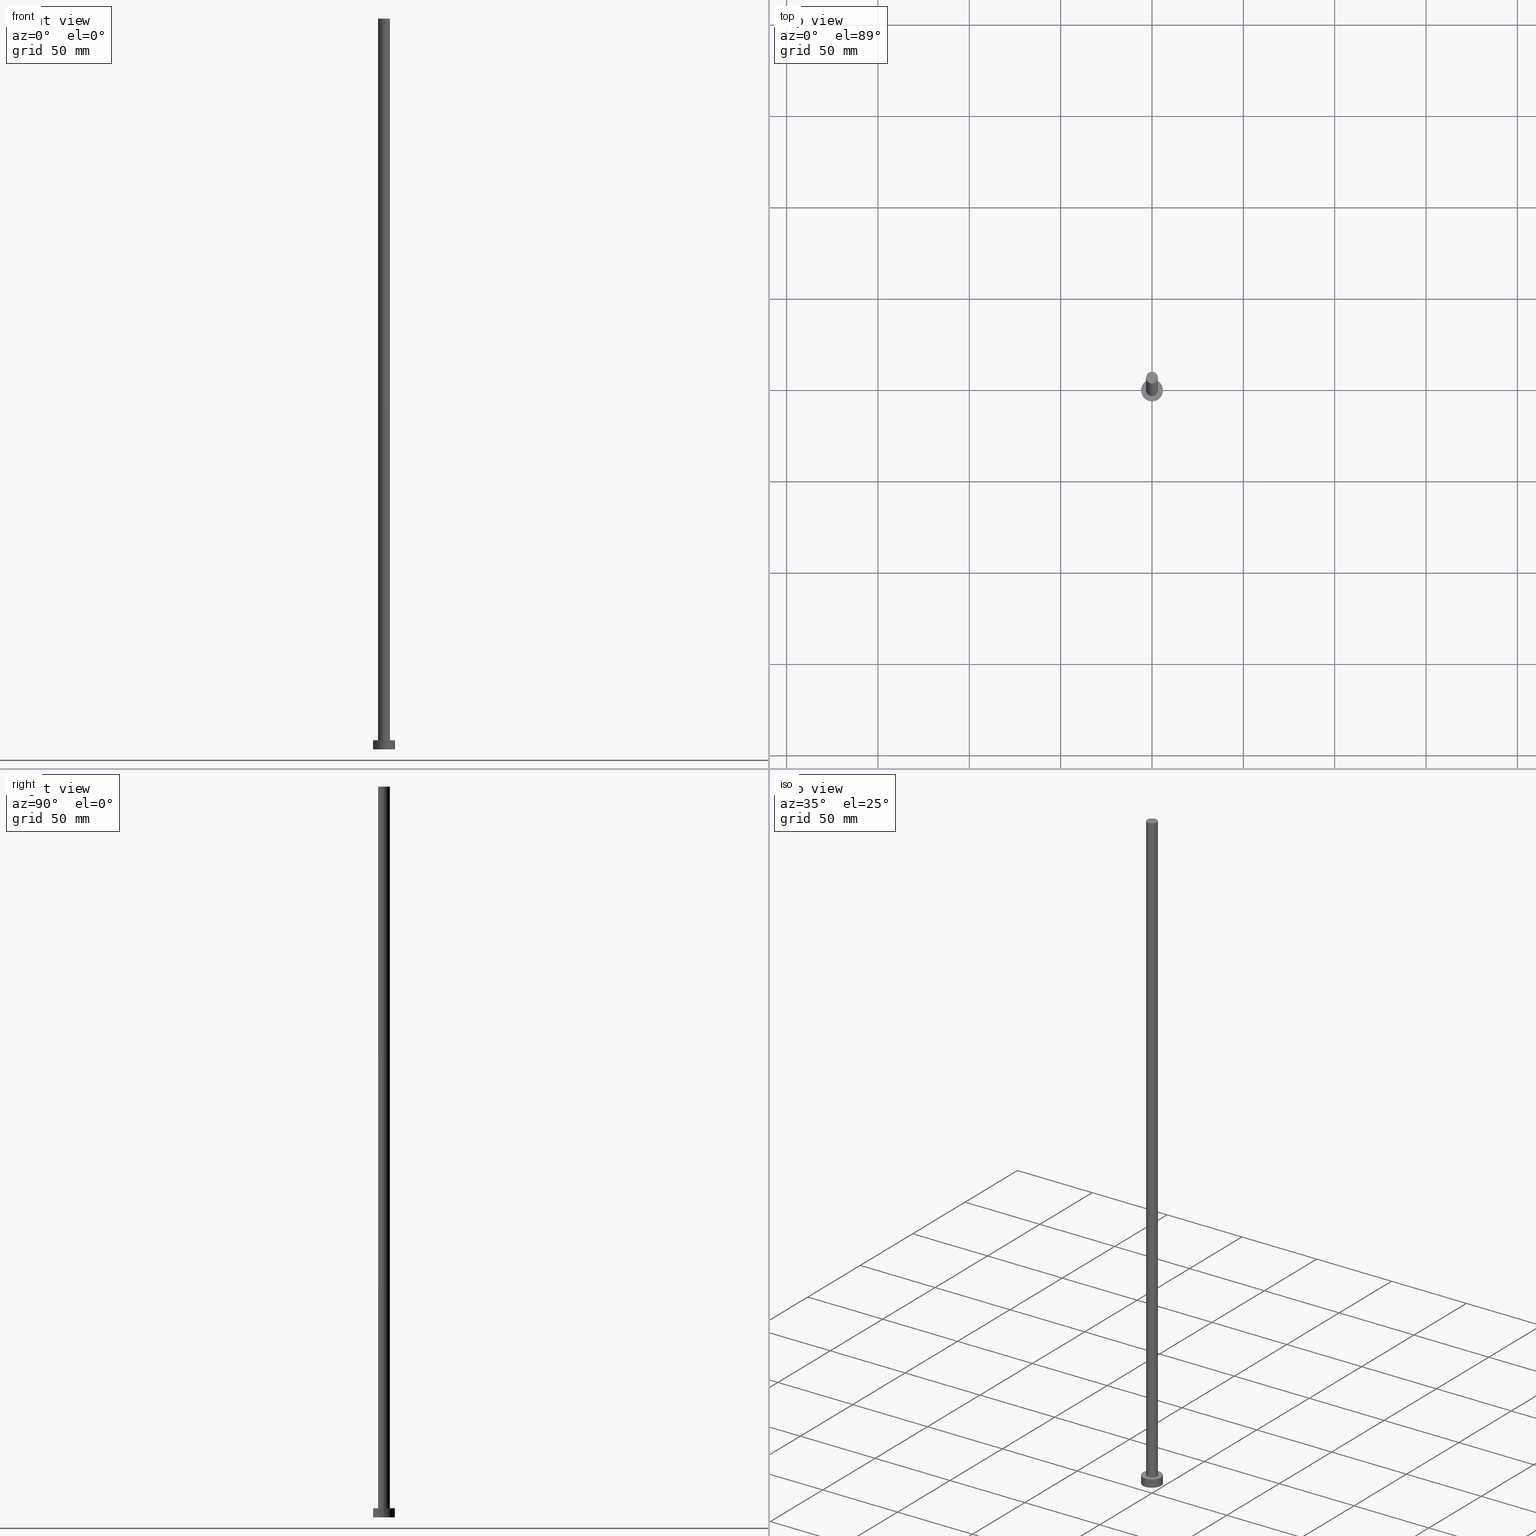
[diagram: canonical four-view strip — front | top / right | iso, engineering-drawing reading convention]
A machine part, canonical four-view strip (front | top / right | iso — engineering-drawing reading convention). The complete STEP part file that produces these views, byte-faithful:
ISO-10303-21;
HEADER;
FILE_DESCRIPTION (( 'STEP AP203' ),
    '1' );
FILE_NAME ('58e5.STEP',
    '2023-02-13T11:47:48',
    ( '' ),
    ( '' ),
    'SwSTEP 2.0',
    'SolidWorks 2019',
    '' );
FILE_SCHEMA (( 'CONFIG_CONTROL_DESIGN' ));
ENDSEC;

DATA;
#1 = EDGE_CURVE ( 'NONE', #188, #25, #248, .T. ) ;
#2 = DIRECTION ( 'NONE',  ( 0.000000000000000000, 0.000000000000000000, 1.000000000000000000 ) ) ;
#3 = APPLICATION_PROTOCOL_DEFINITION ( 'international standard', 'config_control_design', 1994, #229 ) ;
#4 = DIRECTION ( 'NONE',  ( 1.000000000000000000, 0.000000000000000000, 0.000000000000000000 ) ) ;
#5 = CIRCLE ( 'NONE', #122, 3.250000000000000444 ) ;
#6 = CARTESIAN_POINT ( 'NONE',  ( 0.000000000000000000, 0.000000000000000000, 0.000000000000000000 ) ) ;
#7 = APPROVAL_PERSON_ORGANIZATION ( #124, #232, #91 ) ;
#8 = VERTEX_POINT ( 'NONE', #75 ) ;
#9 = DATE_AND_TIME ( #242, #107 ) ;
#10 = ORIENTED_EDGE ( 'NONE', *, *, #252, .F. ) ;
#11 = CALENDAR_DATE ( 2023, 13, 2 ) ;
#12 = ORIENTED_EDGE ( 'NONE', *, *, #1, .F. ) ;
#13 = ORIENTED_EDGE ( 'NONE', *, *, #141, .F. ) ;
#14 = DIRECTION ( 'NONE',  ( 0.000000000000000000, 0.000000000000000000, 1.000000000000000000 ) ) ;
#15 = ADVANCED_FACE ( 'NONE', ( #151 ), #32, .T. ) ;
#16 = EDGE_CURVE ( 'NONE', #169, #188, #137, .T. ) ;
#17 = SHAPE_DEFINITION_REPRESENTATION ( #150, #80 ) ;
#18 =( LENGTH_UNIT ( ) NAMED_UNIT ( * ) SI_UNIT ( .MILLI., .METRE. ) );
#19 = FACE_OUTER_BOUND ( 'NONE', #90, .T. ) ;
#20 = CIRCLE ( 'NONE', #52, 6.000000000000000888 ) ;
#21 = CC_DESIGN_PERSON_AND_ORGANIZATION_ASSIGNMENT ( #164, #219, ( #246 ) ) ;
#22 = DIRECTION ( 'NONE',  ( -1.000000000000000000, 0.000000000000000000, 0.000000000000000000 ) ) ;
#23 = AXIS2_PLACEMENT_3D ( 'NONE', #227, #215, #251 ) ;
#24 = APPLICATION_CONTEXT ( 'configuration controlled 3d designs of mechanical parts and assemblies' ) ;
#25 = VERTEX_POINT ( 'NONE', #68 ) ;
#26 = APPROVAL_STATUS ( 'not_yet_approved' ) ;
#27 = ORIENTED_EDGE ( 'NONE', *, *, #16, .F. ) ;
#28 = VECTOR ( 'NONE', #95, 1000.000000000000000 ) ;
#29 = PERSON_AND_ORGANIZATION_ROLE ( 'classification_officer' ) ;
#30 = EDGE_LOOP ( 'NONE', ( #10, #166, #187, #92 ) ) ;
#31 = PERSON_AND_ORGANIZATION ( #186, #119 ) ;
#32 = PLANE ( 'NONE',  #231 ) ;
#33 = CYLINDRICAL_SURFACE ( 'NONE', #45, 3.250000000000000444 ) ;
#34 = DIRECTION ( 'NONE',  ( -0.000000000000000000, -0.000000000000000000, -1.000000000000000000 ) ) ;
#35 = CC_DESIGN_DATE_AND_TIME_ASSIGNMENT ( #9, #66, ( #88 ) ) ;
#36 = EDGE_CURVE ( 'NONE', #25, #203, #158, .T. ) ;
#37 = DIRECTION ( 'NONE',  ( 0.000000000000000000, 0.000000000000000000, 1.000000000000000000 ) ) ;
#38 = APPROVAL_STATUS ( 'not_yet_approved' ) ;
#39 = DIRECTION ( 'NONE',  ( 0.000000000000000000, 0.000000000000000000, 1.000000000000000000 ) ) ;
#40 = DIRECTION ( 'NONE',  ( -1.000000000000000000, 0.000000000000000000, 0.000000000000000000 ) ) ;
#41 = CYLINDRICAL_SURFACE ( 'NONE', #67, 6.000000000000000888 ) ;
#42 = CIRCLE ( 'NONE', #178, 3.250000000000000444 ) ;
#43 = APPROVAL ( #217, 'NEUR�EN�' ) ;
#44 = VECTOR ( 'NONE', #72, 1000.000000000000000 ) ;
#45 = AXIS2_PLACEMENT_3D ( 'NONE', #218, #113, #240 ) ;
#46 = DATE_AND_TIME ( #48, #125 ) ;
#47 = ORIENTED_EDGE ( 'NONE', *, *, #16, .T. ) ;
#48 = CALENDAR_DATE ( 2023, 13, 2 ) ;
#49 = VERTEX_POINT ( 'NONE', #143 ) ;
#50 = APPROVAL_ROLE ( '' ) ;
#51 = VERTEX_POINT ( 'NONE', #224 ) ;
#52 = AXIS2_PLACEMENT_3D ( 'NONE', #236, #37, #62 ) ;
#53 = DESIGN_CONTEXT ( 'detailed design', #24, 'design' ) ;
#54 = ORIENTED_EDGE ( 'NONE', *, *, #252, .T. ) ;
#55 = VERTEX_POINT ( 'NONE', #128 ) ;
#56 = ADVANCED_FACE ( 'NONE', ( #163 ), #33, .T. ) ;
#57 = LOCAL_TIME ( 12, 47, 48.00000000000000000, #98 ) ;
#58 = LINE ( 'NONE', #60, #221 ) ;
#59 = MANIFOLD_SOLID_BREP ( 'P�idat vysunut�m3', #144 ) ;
#60 = CARTESIAN_POINT ( 'NONE',  ( -6.000000000000000888, 0.000000000000000000, 5.000000000000000000 ) ) ;
#61 = CARTESIAN_POINT ( 'NONE',  ( 0.000000000000000000, 0.000000000000000000, 400.0000000000000000 ) ) ;
#62 = DIRECTION ( 'NONE',  ( 1.000000000000000000, 0.000000000000000000, 0.000000000000000000 ) ) ;
#63 = ADVANCED_FACE ( 'NONE', ( #200 ), #177, .F. ) ;
#64 = CC_DESIGN_APPROVAL ( #232, ( #88 ) ) ;
#65 = PERSON_AND_ORGANIZATION ( #186, #119 ) ;
#66 = DATE_TIME_ROLE ( 'creation_date' ) ;
#67 = AXIS2_PLACEMENT_3D ( 'NONE', #96, #134, #40 ) ;
#68 = CARTESIAN_POINT ( 'NONE',  ( 6.000000000000000888, 7.347880794884120722E-16, 0.000000000000000000 ) ) ;
#69 = APPROVAL_DATE_TIME ( #105, #232 ) ;
#70 = EDGE_LOOP ( 'NONE', ( #223, #54 ) ) ;
#71 = DATE_TIME_ROLE ( 'classification_date' ) ;
#72 = DIRECTION ( 'NONE',  ( -0.000000000000000000, -0.000000000000000000, -1.000000000000000000 ) ) ;
#73 = DIRECTION ( 'NONE',  ( 0.000000000000000000, 0.000000000000000000, 1.000000000000000000 ) ) ;
#74 = EDGE_CURVE ( 'NONE', #188, #169, #111, .T. ) ;
#75 = CARTESIAN_POINT ( 'NONE',  ( -3.250000000000000444, 0.000000000000000000, 400.0000000000000000 ) ) ;
#76 = DIRECTION ( 'NONE',  ( 0.000000000000000000, 0.000000000000000000, 1.000000000000000000 ) ) ;
#77 = PERSON_AND_ORGANIZATION ( #186, #119 ) ;
#78 = CYLINDRICAL_SURFACE ( 'NONE', #195, 3.250000000000000444 ) ;
#79 = FACE_OUTER_BOUND ( 'NONE', #30, .T. ) ;
#80 = ADVANCED_BREP_SHAPE_REPRESENTATION ( '58e5', ( #59, #114 ), #97 ) ;
#81 = CARTESIAN_POINT ( 'NONE',  ( 0.000000000000000000, 0.000000000000000000, 5.000000000000000000 ) ) ;
#82 = ADVANCED_FACE ( 'NONE', ( #19 ), #156, .T. ) ;
#83 = ORIENTED_EDGE ( 'NONE', *, *, #104, .T. ) ;
#84 = COORDINATED_UNIVERSAL_TIME_OFFSET ( 1, 0, .AHEAD. ) ;
#85 = DIRECTION ( 'NONE',  ( 1.000000000000000000, 0.000000000000000000, 0.000000000000000000 ) ) ;
#86 = PERSON_AND_ORGANIZATION_ROLE ( 'creator' ) ;
#87 = ORIENTED_EDGE ( 'NONE', *, *, #153, .F. ) ;
#88 = PRODUCT_DEFINITION ( 'NEZN�M�', '', #246, #53 ) ;
#89 = CALENDAR_DATE ( 2023, 13, 2 ) ;
#90 = EDGE_LOOP ( 'NONE', ( #127, #146, #183, #165 ) ) ;
#91 = APPROVAL_ROLE ( '' ) ;
#92 = ORIENTED_EDGE ( 'NONE', *, *, #104, .F. ) ;
#93 = ORIENTED_EDGE ( 'NONE', *, *, #180, .T. ) ;
#94 = AXIS2_PLACEMENT_3D ( 'NONE', #81, #121, #22 ) ;
#95 = DIRECTION ( 'NONE',  ( -0.000000000000000000, -0.000000000000000000, -1.000000000000000000 ) ) ;
#96 = CARTESIAN_POINT ( 'NONE',  ( 0.000000000000000000, 0.000000000000000000, 5.000000000000000000 ) ) ;
#97 =( GEOMETRIC_REPRESENTATION_CONTEXT ( 3 ) GLOBAL_UNCERTAINTY_ASSIGNED_CONTEXT ( ( #206 ) ) GLOBAL_UNIT_ASSIGNED_CONTEXT ( ( #18, #254, #161 ) ) REPRESENTATION_CONTEXT ( 'NONE', 'WORKASPACE' ) );
#98 = COORDINATED_UNIVERSAL_TIME_OFFSET ( 1, 0, .AHEAD. ) ;
#99 = CARTESIAN_POINT ( 'NONE',  ( 0.000000000000000000, 0.000000000000000000, 5.000000000000000000 ) ) ;
#100 = CC_DESIGN_SECURITY_CLASSIFICATION ( #147, ( #246 ) ) ;
#101 = EDGE_LOOP ( 'NONE', ( #47, #108 ) ) ;
#102 = CC_DESIGN_APPROVAL ( #185, ( #147 ) ) ;
#103 = DIRECTION ( 'NONE',  ( 1.000000000000000000, 0.000000000000000000, -0.000000000000000000 ) ) ;
#104 = EDGE_CURVE ( 'NONE', #8, #55, #176, .T. ) ;
#105 = DATE_AND_TIME ( #247, #57 ) ;
#106 = EDGE_CURVE ( 'NONE', #203, #25, #20, .T. ) ;
#107 = LOCAL_TIME ( 12, 47, 48.00000000000000000, #211 ) ;
#108 = ORIENTED_EDGE ( 'NONE', *, *, #74, .T. ) ;
#109 = APPROVAL_DATE_TIME ( #46, #43 ) ;
#110 = ORIENTED_EDGE ( 'NONE', *, *, #36, .F. ) ;
#111 = CIRCLE ( 'NONE', #205, 6.000000000000000888 ) ;
#112 = EDGE_LOOP ( 'NONE', ( #126, #184 ) ) ;
#113 = DIRECTION ( 'NONE',  ( -0.000000000000000000, -0.000000000000000000, -1.000000000000000000 ) ) ;
#114 = AXIS2_PLACEMENT_3D ( 'NONE', #138, #197, #4 ) ;
#115 = DIRECTION ( 'NONE',  ( 1.000000000000000000, 0.000000000000000000, 0.000000000000000000 ) ) ;
#116 = CARTESIAN_POINT ( 'NONE',  ( 6.000000000000000888, 7.347880794884120722E-16, 5.000000000000000000 ) ) ;
#117 = DATE_AND_TIME ( #11, #237 ) ;
#118 = LINE ( 'NONE', #135, #28 ) ;
#119 = ORGANIZATION ( 'NEUR�EN�', 'NEUR�EN�', '' ) ;
#120 = PLANE ( 'NONE',  #23 ) ;
#121 = DIRECTION ( 'NONE',  ( -0.000000000000000000, -0.000000000000000000, -1.000000000000000000 ) ) ;
#122 = AXIS2_PLACEMENT_3D ( 'NONE', #173, #152, #130 ) ;
#123 = DIRECTION ( 'NONE',  ( 0.000000000000000000, 0.000000000000000000, 1.000000000000000000 ) ) ;
#124 = PERSON_AND_ORGANIZATION ( #186, #119 ) ;
#125 = LOCAL_TIME ( 12, 47, 48.00000000000000000, #142 ) ;
#126 = ORIENTED_EDGE ( 'NONE', *, *, #167, .F. ) ;
#127 = ORIENTED_EDGE ( 'NONE', *, *, #74, .F. ) ;
#128 = CARTESIAN_POINT ( 'NONE',  ( -3.250000000000000444, 0.000000000000000000, 5.000000000000000000 ) ) ;
#129 = DIRECTION ( 'NONE',  ( 0.000000000000000000, 0.000000000000000000, 1.000000000000000000 ) ) ;
#130 = DIRECTION ( 'NONE',  ( 1.000000000000000000, 0.000000000000000000, 0.000000000000000000 ) ) ;
#131 = ADVANCED_FACE ( 'NONE', ( #79 ), #78, .T. ) ;
#132 = AXIS2_PLACEMENT_3D ( 'NONE', #136, #196, #154 ) ;
#133 = EDGE_CURVE ( 'NONE', #51, #55, #225, .T. ) ;
#134 = DIRECTION ( 'NONE',  ( -0.000000000000000000, -0.000000000000000000, -1.000000000000000000 ) ) ;
#135 = CARTESIAN_POINT ( 'NONE',  ( 3.250000000000000444, 3.980102097228897245E-16, 400.0000000000000000 ) ) ;
#136 = CARTESIAN_POINT ( 'NONE',  ( 0.000000000000000000, 0.000000000000000000, 0.000000000000000000 ) ) ;
#137 = CIRCLE ( 'NONE', #216, 6.000000000000000888 ) ;
#138 = CARTESIAN_POINT ( 'NONE',  ( 0.000000000000000000, 0.000000000000000000, 0.000000000000000000 ) ) ;
#139 = PRODUCT_RELATED_PRODUCT_CATEGORY ( 'detail', '', ( #170 ) ) ;
#140 = APPROVAL_DATE_TIME ( #117, #185 ) ;
#141 = EDGE_CURVE ( 'NONE', #8, #49, #42, .T. ) ;
#142 = COORDINATED_UNIVERSAL_TIME_OFFSET ( 1, 0, .AHEAD. ) ;
#143 = CARTESIAN_POINT ( 'NONE',  ( 3.250000000000000444, 3.980102097228897245E-16, 400.0000000000000000 ) ) ;
#144 = CLOSED_SHELL ( 'NONE', ( #131, #82, #189, #172, #63, #56, #15 ) ) ;
#145 = APPLICATION_PROTOCOL_DEFINITION ( 'international standard', 'config_control_design', 1994, #24 ) ;
#146 = ORIENTED_EDGE ( 'NONE', *, *, #1, .T. ) ;
#147 = SECURITY_CLASSIFICATION ( '', '', #199 ) ;
#148 = ORIENTED_EDGE ( 'NONE', *, *, #167, .T. ) ;
#149 = CARTESIAN_POINT ( 'NONE',  ( 0.000000000000000000, 0.000000000000000000, 400.0000000000000000 ) ) ;
#150 = PRODUCT_DEFINITION_SHAPE ( 'NONE', 'NONE',  #88 ) ;
#151 = FACE_OUTER_BOUND ( 'NONE', #70, .T. ) ;
#152 = DIRECTION ( 'NONE',  ( 0.000000000000000000, 0.000000000000000000, 1.000000000000000000 ) ) ;
#153 = EDGE_CURVE ( 'NONE', #49, #51, #118, .T. ) ;
#154 = DIRECTION ( 'NONE',  ( 1.000000000000000000, 0.000000000000000000, -0.000000000000000000 ) ) ;
#155 = CARTESIAN_POINT ( 'NONE',  ( -3.250000000000000444, 0.000000000000000000, 400.0000000000000000 ) ) ;
#156 = CYLINDRICAL_SURFACE ( 'NONE', #94, 6.000000000000000888 ) ;
#157 = DIRECTION ( 'NONE',  ( -0.000000000000000000, -0.000000000000000000, -1.000000000000000000 ) ) ;
#158 = CIRCLE ( 'NONE', #179, 6.000000000000000888 ) ;
#159 = CC_DESIGN_DATE_AND_TIME_ASSIGNMENT ( #244, #71, ( #147 ) ) ;
#160 = MECHANICAL_CONTEXT ( 'NONE', #229, 'mechanical' ) ;
#161 =( NAMED_UNIT ( * ) SI_UNIT ( $, .STERADIAN. ) SOLID_ANGLE_UNIT ( ) );
#162 = VECTOR ( 'NONE', #157, 1000.000000000000000 ) ;
#163 = FACE_OUTER_BOUND ( 'NONE', #171, .T. ) ;
#164 = PERSON_AND_ORGANIZATION ( #186, #119 ) ;
#165 = ORIENTED_EDGE ( 'NONE', *, *, #180, .F. ) ;
#166 = ORIENTED_EDGE ( 'NONE', *, *, #153, .T. ) ;
#167 = EDGE_CURVE ( 'NONE', #55, #51, #5, .T. ) ;
#168 = PERSON_AND_ORGANIZATION ( #186, #119 ) ;
#169 = VERTEX_POINT ( 'NONE', #230 ) ;
#170 = PRODUCT ( '58e5', '58e5', '', ( #160 ) ) ;
#171 = EDGE_LOOP ( 'NONE', ( #87, #13, #83, #148 ) ) ;
#172 = ADVANCED_FACE ( 'NONE', ( #213, #250 ), #120, .T. ) ;
#173 = CARTESIAN_POINT ( 'NONE',  ( 0.000000000000000000, 0.000000000000000000, 5.000000000000000000 ) ) ;
#174 = DIRECTION ( 'NONE',  ( -1.000000000000000000, 0.000000000000000000, 0.000000000000000000 ) ) ;
#175 = PERSON_AND_ORGANIZATION_ROLE ( 'creator' ) ;
#176 = LINE ( 'NONE', #155, #162 ) ;
#177 = PLANE ( 'NONE',  #132 ) ;
#178 = AXIS2_PLACEMENT_3D ( 'NONE', #61, #14, #255 ) ;
#179 = AXIS2_PLACEMENT_3D ( 'NONE', #6, #73, #85 ) ;
#180 = EDGE_CURVE ( 'NONE', #169, #203, #58, .T. ) ;
#181 = DIRECTION ( 'NONE',  ( 1.000000000000000000, 0.000000000000000000, 0.000000000000000000 ) ) ;
#182 = PERSON_AND_ORGANIZATION ( #186, #119 ) ;
#183 = ORIENTED_EDGE ( 'NONE', *, *, #36, .T. ) ;
#184 = ORIENTED_EDGE ( 'NONE', *, *, #133, .F. ) ;
#185 = APPROVAL ( #38, 'NEUR�EN�' ) ;
#186 = PERSON ( 'NEUR�EN�', 'NEUR�EN�', 'NEUR�EN�', ('NEUR�EN�'), ('NEUR�EN�'), ('NEUR�EN�') ) ;
#187 = ORIENTED_EDGE ( 'NONE', *, *, #133, .T. ) ;
#188 = VERTEX_POINT ( 'NONE', #116 ) ;
#189 = ADVANCED_FACE ( 'NONE', ( #191 ), #41, .T. ) ;
#190 = CARTESIAN_POINT ( 'NONE',  ( 0.000000000000000000, 0.000000000000000000, 5.000000000000000000 ) ) ;
#191 = FACE_OUTER_BOUND ( 'NONE', #220, .T. ) ;
#192 = PERSON_AND_ORGANIZATION ( #186, #119 ) ;
#193 = AXIS2_PLACEMENT_3D ( 'NONE', #212, #39, #194 ) ;
#194 = DIRECTION ( 'NONE',  ( 1.000000000000000000, 0.000000000000000000, 0.000000000000000000 ) ) ;
#195 = AXIS2_PLACEMENT_3D ( 'NONE', #209, #34, #174 ) ;
#196 = DIRECTION ( 'NONE',  ( 0.000000000000000000, 0.000000000000000000, 1.000000000000000000 ) ) ;
#197 = DIRECTION ( 'NONE',  ( 0.000000000000000000, 0.000000000000000000, 1.000000000000000000 ) ) ;
#198 = APPROVAL_PERSON_ORGANIZATION ( #192, #43, #50 ) ;
#199 = SECURITY_CLASSIFICATION_LEVEL ( 'unclassified' ) ;
#200 = FACE_OUTER_BOUND ( 'NONE', #207, .T. ) ;
#201 = CC_DESIGN_APPROVAL ( #43, ( #246 ) ) ;
#202 = CC_DESIGN_PERSON_AND_ORGANIZATION_ASSIGNMENT ( #168, #29, ( #147 ) ) ;
#203 = VERTEX_POINT ( 'NONE', #234 ) ;
#204 = ORIENTED_EDGE ( 'NONE', *, *, #106, .F. ) ;
#205 = AXIS2_PLACEMENT_3D ( 'NONE', #190, #2, #233 ) ;
#206 = UNCERTAINTY_MEASURE_WITH_UNIT (LENGTH_MEASURE( 1.000000000000000082E-05 ), #18, 'distance_accuracy_value', 'NONE');
#207 = EDGE_LOOP ( 'NONE', ( #204, #110 ) ) ;
#208 = CC_DESIGN_PERSON_AND_ORGANIZATION_ASSIGNMENT ( #77, #175, ( #88 ) ) ;
#209 = CARTESIAN_POINT ( 'NONE',  ( 0.000000000000000000, 0.000000000000000000, 400.0000000000000000 ) ) ;
#210 = DIRECTION ( 'NONE',  ( -0.000000000000000000, -0.000000000000000000, -1.000000000000000000 ) ) ;
#211 = COORDINATED_UNIVERSAL_TIME_OFFSET ( 1, 0, .AHEAD. ) ;
#212 = CARTESIAN_POINT ( 'NONE',  ( 0.000000000000000000, 0.000000000000000000, 400.0000000000000000 ) ) ;
#213 = FACE_BOUND ( 'NONE', #112, .T. ) ;
#214 = LOCAL_TIME ( 12, 47, 48.00000000000000000, #84 ) ;
#215 = DIRECTION ( 'NONE',  ( 0.000000000000000000, 0.000000000000000000, 1.000000000000000000 ) ) ;
#216 = AXIS2_PLACEMENT_3D ( 'NONE', #243, #123, #181 ) ;
#217 = APPROVAL_STATUS ( 'not_yet_approved' ) ;
#218 = CARTESIAN_POINT ( 'NONE',  ( 0.000000000000000000, 0.000000000000000000, 400.0000000000000000 ) ) ;
#219 = PERSON_AND_ORGANIZATION_ROLE ( 'design_supplier' ) ;
#220 = EDGE_LOOP ( 'NONE', ( #12, #27, #93, #249 ) ) ;
#221 = VECTOR ( 'NONE', #210, 1000.000000000000000 ) ;
#222 = COORDINATED_UNIVERSAL_TIME_OFFSET ( 1, 0, .AHEAD. ) ;
#223 = ORIENTED_EDGE ( 'NONE', *, *, #141, .T. ) ;
#224 = CARTESIAN_POINT ( 'NONE',  ( 3.250000000000000444, 3.980102097228897245E-16, 5.000000000000000000 ) ) ;
#225 = CIRCLE ( 'NONE', #226, 3.250000000000000444 ) ;
#226 = AXIS2_PLACEMENT_3D ( 'NONE', #99, #76, #115 ) ;
#227 = CARTESIAN_POINT ( 'NONE',  ( 0.000000000000000000, 0.000000000000000000, 5.000000000000000000 ) ) ;
#228 = APPROVAL_ROLE ( '' ) ;
#229 = APPLICATION_CONTEXT ( 'configuration controlled 3d designs of mechanical parts and assemblies' ) ;
#230 = CARTESIAN_POINT ( 'NONE',  ( -6.000000000000000888, 0.000000000000000000, 5.000000000000000000 ) ) ;
#231 = AXIS2_PLACEMENT_3D ( 'NONE', #149, #129, #103 ) ;
#232 = APPROVAL ( #26, 'NEUR�EN�' ) ;
#233 = DIRECTION ( 'NONE',  ( 1.000000000000000000, 0.000000000000000000, 0.000000000000000000 ) ) ;
#234 = CARTESIAN_POINT ( 'NONE',  ( -6.000000000000000888, 0.000000000000000000, 0.000000000000000000 ) ) ;
#235 = APPROVAL_PERSON_ORGANIZATION ( #31, #185, #228 ) ;
#236 = CARTESIAN_POINT ( 'NONE',  ( 0.000000000000000000, 0.000000000000000000, 0.000000000000000000 ) ) ;
#237 = LOCAL_TIME ( 12, 47, 48.00000000000000000, #222 ) ;
#238 = PERSON_AND_ORGANIZATION_ROLE ( 'design_owner' ) ;
#239 = CIRCLE ( 'NONE', #193, 3.250000000000000444 ) ;
#240 = DIRECTION ( 'NONE',  ( -1.000000000000000000, 0.000000000000000000, 0.000000000000000000 ) ) ;
#241 = CC_DESIGN_PERSON_AND_ORGANIZATION_ASSIGNMENT ( #65, #238, ( #170 ) ) ;
#242 = CALENDAR_DATE ( 2023, 13, 2 ) ;
#243 = CARTESIAN_POINT ( 'NONE',  ( 0.000000000000000000, 0.000000000000000000, 5.000000000000000000 ) ) ;
#244 = DATE_AND_TIME ( #89, #214 ) ;
#245 = CARTESIAN_POINT ( 'NONE',  ( 6.000000000000000888, 7.347880794884120722E-16, 5.000000000000000000 ) ) ;
#246 = PRODUCT_DEFINITION_FORMATION_WITH_SPECIFIED_SOURCE ( 'LIBOVOLN�', '', #170, .NOT_KNOWN. ) ;
#247 = CALENDAR_DATE ( 2023, 13, 2 ) ;
#248 = LINE ( 'NONE', #245, #44 ) ;
#249 = ORIENTED_EDGE ( 'NONE', *, *, #106, .T. ) ;
#250 = FACE_OUTER_BOUND ( 'NONE', #101, .T. ) ;
#251 = DIRECTION ( 'NONE',  ( 1.000000000000000000, 0.000000000000000000, -0.000000000000000000 ) ) ;
#252 = EDGE_CURVE ( 'NONE', #49, #8, #239, .T. ) ;
#253 = CC_DESIGN_PERSON_AND_ORGANIZATION_ASSIGNMENT ( #182, #86, ( #246 ) ) ;
#254 =( NAMED_UNIT ( * ) PLANE_ANGLE_UNIT ( ) SI_UNIT ( $, .RADIAN. ) );
#255 = DIRECTION ( 'NONE',  ( 1.000000000000000000, 0.000000000000000000, 0.000000000000000000 ) ) ;
ENDSEC;
END-ISO-10303-21;
